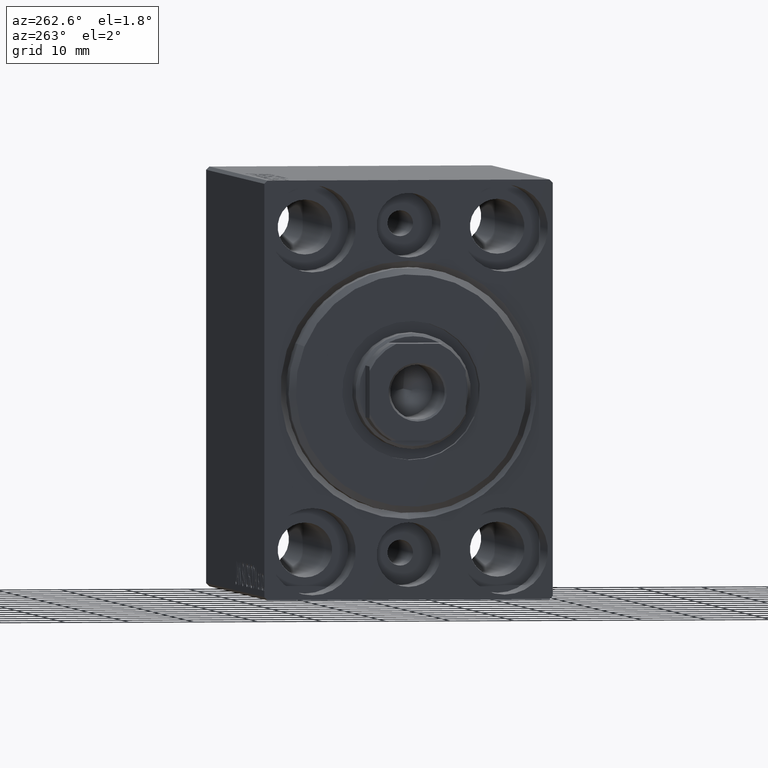
[diagram: clean part render]
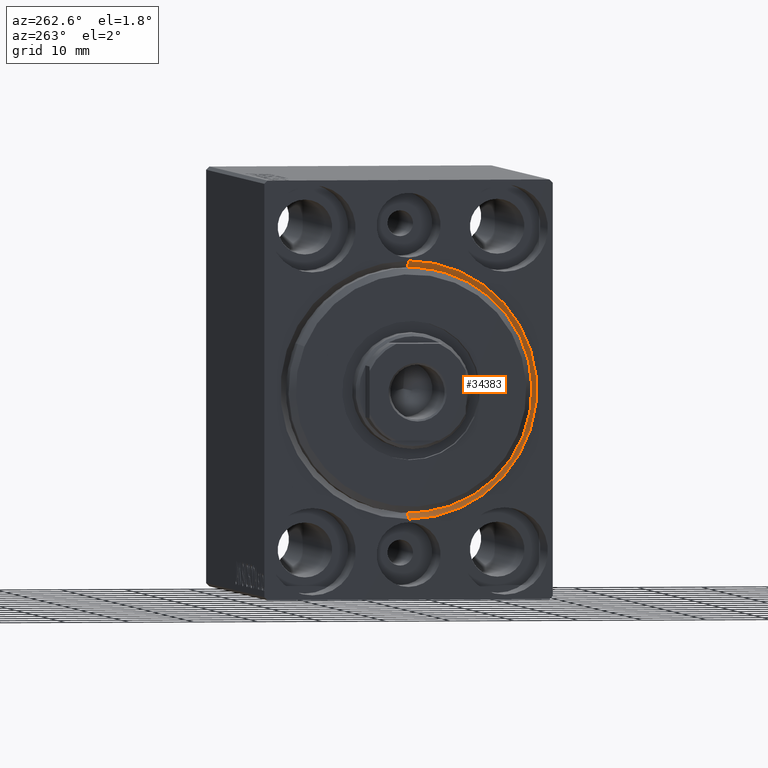
[diagram: same view with one face highlighted and labeled with its STEP entity id]
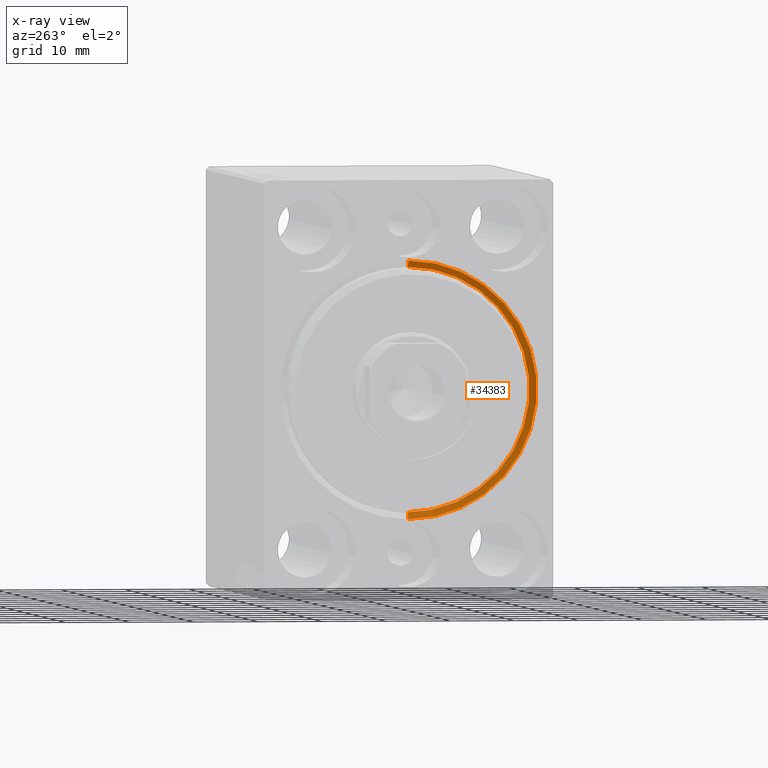
[diagram: x-ray of the same camera — body ghosted, the highlighted face saturated]
A machine part, auxiliary view. The second image highlights one B-rep face of the part: STEP entity #34383.
The next image is the same camera in x-ray: the body ghosted, the highlighted face saturated — about 0% of this face is hidden behind the body in this view.
In plain terms, the highlighted conical surface has half-angle 45 deg.
Its self-contained STEP definition (entity closure, byte-faithful):
#117 = CARTESIAN_POINT ( 'NONE',  ( 1.000000000000000888, 0.000000000000000000, 0.000000000000000000 ) ) ;
#3590 = DIRECTION ( 'NONE',  ( -0.7071067811865463515, 0.000000000000000000, 0.7071067811865487940 ) ) ;
#3954 = CARTESIAN_POINT ( 'NONE',  ( 0.000000000000000000, 0.000000000000000000, 20.00000000000000355 ) ) ;
#4568 = FACE_OUTER_BOUND ( 'NONE', #16534, .T. ) ;
#5009 = ORIENTED_EDGE ( 'NONE', *, *, #23338, .F. ) ;
#5164 = AXIS2_PLACEMENT_3D ( 'NONE', #117, #37495, #12967 ) ;
#7182 = EDGE_CURVE ( 'NONE', #19019, #34650, #22800, .T. ) ;
#7649 = DIRECTION ( 'NONE',  ( 0.000000000000000000, 0.000000000000000000, -1.000000000000000000 ) ) ;
#8662 = CARTESIAN_POINT ( 'NONE',  ( 1.000000000000000888, 2.326828918379970970E-15, -19.00000000000000000 ) ) ;
#10535 = DIRECTION ( 'NONE',  ( 1.000000000000000000, 0.000000000000000000, 0.000000000000000000 ) ) ;
#11253 = CONICAL_SURFACE ( 'NONE', #39473, 19.00000000000000000, 0.7853981633974500554 ) ;
#11396 = CARTESIAN_POINT ( 'NONE',  ( 0.000000000000000000, 0.000000000000000000, 0.000000000000000000 ) ) ;
#11426 = DIRECTION ( 'NONE',  ( -1.000000000000000000, 0.000000000000000000, 0.000000000000000000 ) ) ;
#12313 = CARTESIAN_POINT ( 'NONE',  ( 0.000000000000000000, 2.449293598294706907E-15, -20.00000000000000355 ) ) ;
#12690 = ORIENTED_EDGE ( 'NONE', *, *, #40429, .T. ) ;
#12967 = DIRECTION ( 'NONE',  ( 0.000000000000000000, 0.000000000000000000, -1.000000000000000000 ) ) ;
#16534 = EDGE_LOOP ( 'NONE', ( #29060, #12690, #5009, #25240 ) ) ;
#19019 = VERTEX_POINT ( 'NONE', #37225 ) ;
#21084 = CARTESIAN_POINT ( 'NONE',  ( 1.000000000000000888, 0.000000000000000000, 19.00000000000000000 ) ) ;
#22123 = DIRECTION ( 'NONE',  ( -0.7071067811865463515, 8.659560562354948882E-17, -0.7071067811865487940 ) ) ;
#22800 = CIRCLE ( 'NONE', #5164, 19.00000000000000000 ) ;
#23338 = EDGE_CURVE ( 'NONE', #42980, #41462, #25186, .T. ) ;
#23489 = LINE ( 'NONE', #30766, #25585 ) ;
#24772 = VECTOR ( 'NONE', #22123, 1000.000000000000000 ) ;
#25016 = LINE ( 'NONE', #8662, #24772 ) ;
#25186 = CIRCLE ( 'NONE', #42847, 20.00000000000000355 ) ;
#25240 = ORIENTED_EDGE ( 'NONE', *, *, #43701, .F. ) ;
#25585 = VECTOR ( 'NONE', #3590, 1000.000000000000000 ) ;
#29060 = ORIENTED_EDGE ( 'NONE', *, *, #7182, .F. ) ;
#30766 = CARTESIAN_POINT ( 'NONE',  ( 1.000000000000000888, 0.000000000000000000, 19.00000000000000000 ) ) ;
#30879 = DIRECTION ( 'NONE',  ( 0.000000000000000000, 0.000000000000000000, 1.000000000000000000 ) ) ;
#34383 = ADVANCED_FACE ( 'NONE', ( #4568 ), #11253, .F. ) ;
#34650 = VERTEX_POINT ( 'NONE', #21084 ) ;
#35057 = CARTESIAN_POINT ( 'NONE',  ( 1.000000000000000888, 0.000000000000000000, 0.000000000000000000 ) ) ;
#37225 = CARTESIAN_POINT ( 'NONE',  ( 1.000000000000000888, 2.326828918379970970E-15, -19.00000000000000000 ) ) ;
#37495 = DIRECTION ( 'NONE',  ( -1.000000000000000000, 0.000000000000000000, 0.000000000000000000 ) ) ;
#39473 = AXIS2_PLACEMENT_3D ( 'NONE', #35057, #11426, #30879 ) ;
#40429 = EDGE_CURVE ( 'NONE', #19019, #41462, #25016, .T. ) ;
#41462 = VERTEX_POINT ( 'NONE', #12313 ) ;
#42847 = AXIS2_PLACEMENT_3D ( 'NONE', #11396, #10535, #7649 ) ;
#42980 = VERTEX_POINT ( 'NONE', #3954 ) ;
#43701 = EDGE_CURVE ( 'NONE', #34650, #42980, #23489, .T. ) ;